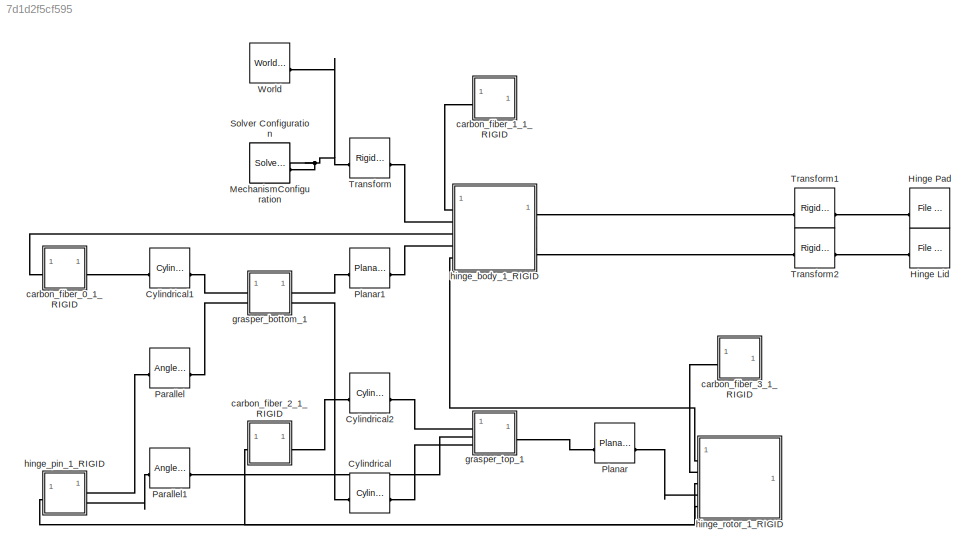
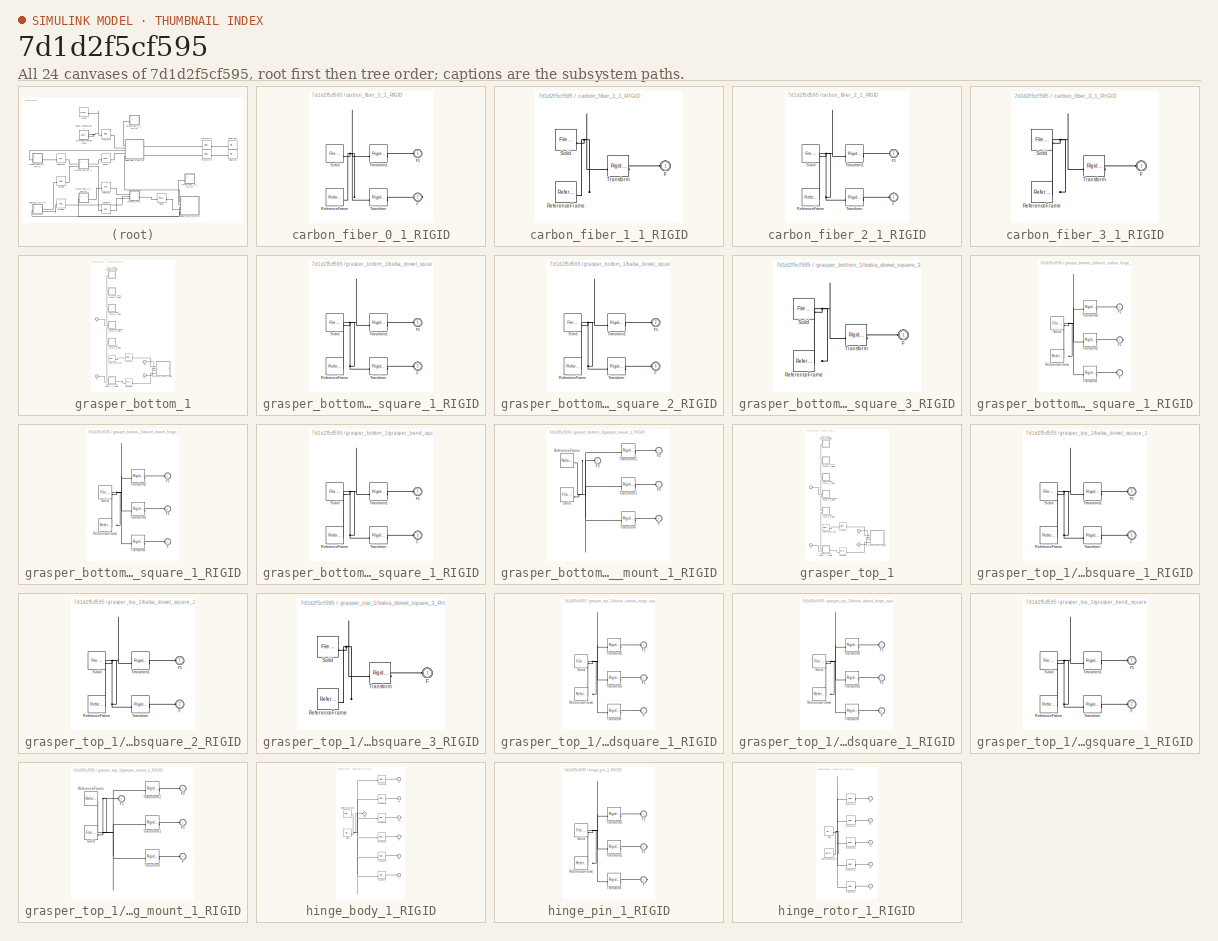
[diagram: thumbnail index - all 24 canvases of the model, root first then tree order]
MODEL slx_7d1d2f5cf595
KIND model
CONFIG AbsTol = auto
CONFIG EnableMultiTasking = off
CONFIG FixedStep = auto
CONFIG MaxStep = auto
CONFIG MinStep = auto
CONFIG RelTol = 1e-3
CONFIG SampleTimeConstraint = Unconstrained
CONFIG SolverName = VariableStepAuto
CONFIG StartTime = 0.0
CONFIG StopTime = 10.0
WORKSPACE source: external: MATLAB File  (data not in archive)
BLOCK [Reference] Cylindrical  REF=sm_lib/Joints/Cylindrical
Joint
  SourceBlock = sm_lib/Joints/Cylindrical\nJoint
  SourceType = Cylindrical\nJoint
BLOCK [Reference] Cylindrical1  REF=sm_lib/Joints/Cylindrical
Joint
  SourceBlock = sm_lib/Joints/Cylindrical\nJoint
  SourceType = Cylindrical\nJoint
BLOCK [Reference] Cylindrical2  REF=sm_lib/Joints/Cylindrical
Joint
  SourceBlock = sm_lib/Joints/Cylindrical\nJoint
  SourceType = Cylindrical\nJoint
BLOCK [Reference] Hinge Lid  REF=sm_lib/Body Elements/File Solid
  NameLocation = top
  SourceBlock = sm_lib/Body Elements/File Solid
  SourceType = File Solid
BLOCK [Reference] Hinge Pad  REF=sm_lib/Body Elements/File Solid
  NameLocation = top
  SourceBlock = sm_lib/Body Elements/File Solid
  SourceType = File Solid
BLOCK [Reference] MechanismConfiguration  REF=sm_lib/Utilities/Mechanism
Configuration
  SourceBlock = sm_lib/Utilities/Mechanism\nConfiguration
  SourceType = Mechanism\nConfiguration
BLOCK [Reference] Parallel  REF=sm_lib/Constraints/Angle
Constraint
  SourceBlock = sm_lib/Constraints/Angle\nConstraint
  SourceType = Angle\nConstraint
BLOCK [Reference] Parallel1  REF=sm_lib/Constraints/Angle
Constraint
  SourceBlock = sm_lib/Constraints/Angle\nConstraint
  SourceType = Angle\nConstraint
BLOCK [Reference] Planar  REF=sm_lib/Joints/Planar Joint
  SourceBlock = sm_lib/Joints/Planar Joint
  SourceType = Planar Joint
BLOCK [Reference] Planar1  REF=sm_lib/Joints/Planar Joint
  SourceBlock = sm_lib/Joints/Planar Joint
  SourceType = Planar Joint
BLOCK [Reference] Solver Configuration  REF=nesl_utility/Solver
Configuration
  SourceBlock = nesl_utility/Solver\nConfiguration
  SourceType = Solver\nConfiguration
BLOCK [Reference] Transform  REF=sm_lib/Frames and
Transforms/Rigid
Transform
  SourceBlock = sm_lib/Frames and\nTransforms/Rigid\nTransform
  SourceType = Rigid\nTransform
BLOCK [Reference] Transform1  REF=sm_lib/Frames and
Transforms/Rigid
Transform
  NameLocation = top
  SourceBlock = sm_lib/Frames and\nTransforms/Rigid\nTransform
  SourceType = Rigid\nTransform
BLOCK [Reference] Transform2  REF=sm_lib/Frames and
Transforms/Rigid
Transform
  NameLocation = top
  SourceBlock = sm_lib/Frames and\nTransforms/Rigid\nTransform
  SourceType = Rigid\nTransform
BLOCK [Reference] World  REF=sm_lib/Frames and
Transforms/World Frame
  SourceBlock = sm_lib/Frames and\nTransforms/World Frame
  SourceType = World Frame
BLOCK [SubSystem] carbon_fiber_0_1_RIGID
BLOCK [PMIOPort] carbon_fiber_0_1_RIGID/F
  Port = 2
  Side = Right
BLOCK [PMIOPort] carbon_fiber_0_1_RIGID/F1
  Side = Left
BLOCK [Reference] carbon_fiber_0_1_RIGID/ReferenceFrame  REF=sm_lib/Frames and
Transforms/Reference
Frame
  SourceBlock = sm_lib/Frames and\nTransforms/Reference\nFrame
  SourceType = Reference\nFrame
BLOCK [Reference] carbon_fiber_0_1_RIGID/Solid  REF=sm_lib/Body Elements/File Solid
  SourceBlock = sm_lib/Body Elements/File Solid
  SourceType = File Solid
BLOCK [Reference] carbon_fiber_0_1_RIGID/Transform  REF=sm_lib/Frames and
Transforms/Rigid
Transform
  SourceBlock = sm_lib/Frames and\nTransforms/Rigid\nTransform
  SourceType = Rigid\nTransform
BLOCK [Reference] carbon_fiber_0_1_RIGID/Transform1  REF=sm_lib/Frames and
Transforms/Rigid
Transform
  SourceBlock = sm_lib/Frames and\nTransforms/Rigid\nTransform
  SourceType = Rigid\nTransform
BLOCK [SubSystem] carbon_fiber_1_1_RIGID
BLOCK [PMIOPort] carbon_fiber_1_1_RIGID/F
  Side = Left
BLOCK [Reference] carbon_fiber_1_1_RIGID/ReferenceFrame  REF=sm_lib/Frames and
Transforms/Reference
Frame
  SourceBlock = sm_lib/Frames and\nTransforms/Reference\nFrame
  SourceType = Reference\nFrame
BLOCK [Reference] carbon_fiber_1_1_RIGID/Solid  REF=sm_lib/Body Elements/File Solid
  SourceBlock = sm_lib/Body Elements/File Solid
  SourceType = File Solid
BLOCK [Reference] carbon_fiber_1_1_RIGID/Transform  REF=sm_lib/Frames and
Transforms/Rigid
Transform
  SourceBlock = sm_lib/Frames and\nTransforms/Rigid\nTransform
  SourceType = Rigid\nTransform
BLOCK [SubSystem] carbon_fiber_2_1_RIGID
BLOCK [PMIOPort] carbon_fiber_2_1_RIGID/F
  Side = Left
BLOCK [PMIOPort] carbon_fiber_2_1_RIGID/F1
  Port = 2
  Side = Right
BLOCK [Reference] carbon_fiber_2_1_RIGID/ReferenceFrame  REF=sm_lib/Frames and
Transforms/Reference
Frame
  SourceBlock = sm_lib/Frames and\nTransforms/Reference\nFrame
  SourceType = Reference\nFrame
BLOCK [Reference] carbon_fiber_2_1_RIGID/Solid  REF=sm_lib/Body Elements/File Solid
  SourceBlock = sm_lib/Body Elements/File Solid
  SourceType = File Solid
BLOCK [Reference] carbon_fiber_2_1_RIGID/Transform  REF=sm_lib/Frames and
Transforms/Rigid
Transform
  SourceBlock = sm_lib/Frames and\nTransforms/Rigid\nTransform
  SourceType = Rigid\nTransform
BLOCK [Reference] carbon_fiber_2_1_RIGID/Transform1  REF=sm_lib/Frames and
Transforms/Rigid
Transform
  SourceBlock = sm_lib/Frames and\nTransforms/Rigid\nTransform
  SourceType = Rigid\nTransform
BLOCK [SubSystem] carbon_fiber_3_1_RIGID
BLOCK [PMIOPort] carbon_fiber_3_1_RIGID/F
  Side = Left
BLOCK [Reference] carbon_fiber_3_1_RIGID/ReferenceFrame  REF=sm_lib/Frames and
Transforms/Reference
Frame
  SourceBlock = sm_lib/Frames and\nTransforms/Reference\nFrame
  SourceType = Reference\nFrame
BLOCK [Reference] carbon_fiber_3_1_RIGID/Solid  REF=sm_lib/Body Elements/File Solid
  SourceBlock = sm_lib/Body Elements/File Solid
  SourceType = File Solid
BLOCK [Reference] carbon_fiber_3_1_RIGID/Transform  REF=sm_lib/Frames and
Transforms/Rigid
Transform
  SourceBlock = sm_lib/Frames and\nTransforms/Rigid\nTransform
  SourceType = Rigid\nTransform
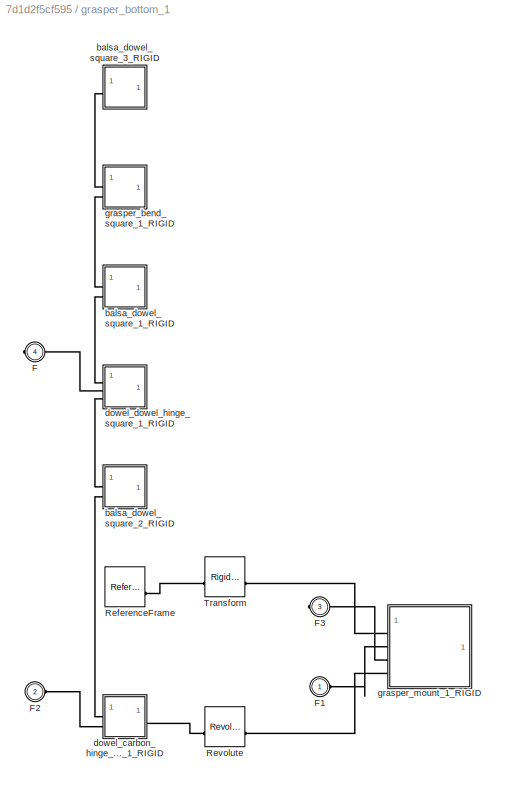
BLOCK [SubSystem] grasper_bottom_1
BLOCK [PMIOPort] grasper_bottom_1/F
  Port = 4
  Side = Right
BLOCK [PMIOPort] grasper_bottom_1/F1
  Side = Left
BLOCK [PMIOPort] grasper_bottom_1/F2
  Port = 2
  Side = Left
BLOCK [PMIOPort] grasper_bottom_1/F3
  Port = 3
  Side = Right
BLOCK [Reference] grasper_bottom_1/ReferenceFrame  REF=sm_lib/Frames and
Transforms/Reference
Frame
  SourceBlock = sm_lib/Frames and\nTransforms/Reference\nFrame
  SourceType = Reference\nFrame
BLOCK [Reference] grasper_bottom_1/Revolute  REF=sm_lib/Joints/Revolute Joint
  SourceBlock = sm_lib/Joints/Revolute Joint
  SourceType = Revolute Joint
BLOCK [Reference] grasper_bottom_1/Transform  REF=sm_lib/Frames and
Transforms/Rigid
Transform
  SourceBlock = sm_lib/Frames and\nTransforms/Rigid\nTransform
  SourceType = Rigid\nTransform
BLOCK [SubSystem] grasper_bottom_1/balsa_dowel_square_1_RIGID
BLOCK [PMIOPort] grasper_bottom_1/balsa_dowel_square_1_RIGID/F
  Port = 2
  Side = Left
BLOCK [PMIOPort] grasper_bottom_1/balsa_dowel_square_1_RIGID/F1
  Side = Left
BLOCK [Reference] grasper_bottom_1/balsa_dowel_square_1_RIGID/ReferenceFrame  REF=sm_lib/Frames and
Transforms/Reference
Frame
  SourceBlock = sm_lib/Frames and\nTransforms/Reference\nFrame
  SourceType = Reference\nFrame
BLOCK [Reference] grasper_bottom_1/balsa_dowel_square_1_RIGID/Solid  REF=sm_lib/Body Elements/File Solid
  SourceBlock = sm_lib/Body Elements/File Solid
  SourceType = File Solid
BLOCK [Reference] grasper_bottom_1/balsa_dowel_square_1_RIGID/Transform  REF=sm_lib/Frames and
Transforms/Rigid
Transform
  SourceBlock = sm_lib/Frames and\nTransforms/Rigid\nTransform
  SourceType = Rigid\nTransform
BLOCK [Reference] grasper_bottom_1/balsa_dowel_square_1_RIGID/Transform1  REF=sm_lib/Frames and
Transforms/Rigid
Transform
  SourceBlock = sm_lib/Frames and\nTransforms/Rigid\nTransform
  SourceType = Rigid\nTransform
BLOCK [SubSystem] grasper_bottom_1/balsa_dowel_square_2_RIGID
BLOCK [PMIOPort] grasper_bottom_1/balsa_dowel_square_2_RIGID/F
  Side = Left
BLOCK [PMIOPort] grasper_bottom_1/balsa_dowel_square_2_RIGID/F1
  Port = 2
  Side = Left
BLOCK [Reference] grasper_bottom_1/balsa_dowel_square_2_RIGID/ReferenceFrame  REF=sm_lib/Frames and
Transforms/Reference
Frame
  SourceBlock = sm_lib/Frames and\nTransforms/Reference\nFrame
  SourceType = Reference\nFrame
BLOCK [Reference] grasper_bottom_1/balsa_dowel_square_2_RIGID/Solid  REF=sm_lib/Body Elements/File Solid
  SourceBlock = sm_lib/Body Elements/File Solid
  SourceType = File Solid
BLOCK [Reference] grasper_bottom_1/balsa_dowel_square_2_RIGID/Transform  REF=sm_lib/Frames and
Transforms/Rigid
Transform
  SourceBlock = sm_lib/Frames and\nTransforms/Rigid\nTransform
  SourceType = Rigid\nTransform
BLOCK [Reference] grasper_bottom_1/balsa_dowel_square_2_RIGID/Transform1  REF=sm_lib/Frames and
Transforms/Rigid
Transform
  SourceBlock = sm_lib/Frames and\nTransforms/Rigid\nTransform
  SourceType = Rigid\nTransform
BLOCK [SubSystem] grasper_bottom_1/balsa_dowel_square_3_RIGID
BLOCK [PMIOPort] grasper_bottom_1/balsa_dowel_square_3_RIGID/F
  Side = Left
BLOCK [Reference] grasper_bottom_1/balsa_dowel_square_3_RIGID/ReferenceFrame  REF=sm_lib/Frames and
Transforms/Reference
Frame
  SourceBlock = sm_lib/Frames and\nTransforms/Reference\nFrame
  SourceType = Reference\nFrame
BLOCK [Reference] grasper_bottom_1/balsa_dowel_square_3_RIGID/Solid  REF=sm_lib/Body Elements/File Solid
  SourceBlock = sm_lib/Body Elements/File Solid
  SourceType = File Solid
BLOCK [Reference] grasper_bottom_1/balsa_dowel_square_3_RIGID/Transform  REF=sm_lib/Frames and
Transforms/Rigid
Transform
  SourceBlock = sm_lib/Frames and\nTransforms/Rigid\nTransform
  SourceType = Rigid\nTransform
BLOCK [SubSystem] grasper_bottom_1/dowel_carbon_hinge_square_1_RIGID
BLOCK [PMIOPort] grasper_bottom_1/dowel_carbon_hinge_square_1_RIGID/F
  Side = Left
BLOCK [PMIOPort] grasper_bottom_1/dowel_carbon_hinge_square_1_RIGID/F1
  Port = 3
  Side = Right
BLOCK [PMIOPort] grasper_bottom_1/dowel_carbon_hinge_square_1_RIGID/F2
  Port = 2
  Side = Left
BLOCK [Reference] grasper_bottom_1/dowel_carbon_hinge_square_1_RIGID/ReferenceFrame  REF=sm_lib/Frames and
Transforms/Reference
Frame
  SourceBlock = sm_lib/Frames and\nTransforms/Reference\nFrame
  SourceType = Reference\nFrame
BLOCK [Reference] grasper_bottom_1/dowel_carbon_hinge_square_1_RIGID/Solid  REF=sm_lib/Body Elements/File Solid
  SourceBlock = sm_lib/Body Elements/File Solid
  SourceType = File Solid
BLOCK [Reference] grasper_bottom_1/dowel_carbon_hinge_square_1_RIGID/Transform  REF=sm_lib/Frames and
Transforms/Rigid
Transform
  SourceBlock = sm_lib/Frames and\nTransforms/Rigid\nTransform
  SourceType = Rigid\nTransform
BLOCK [Reference] grasper_bottom_1/dowel_carbon_hinge_square_1_RIGID/Transform1  REF=sm_lib/Frames and
Transforms/Rigid
Transform
  SourceBlock = sm_lib/Frames and\nTransforms/Rigid\nTransform
  SourceType = Rigid\nTransform
BLOCK [Reference] grasper_bottom_1/dowel_carbon_hinge_square_1_RIGID/Transform2  REF=sm_lib/Frames and
Transforms/Rigid
Transform
  SourceBlock = sm_lib/Frames and\nTransforms/Rigid\nTransform
  SourceType = Rigid\nTransform
BLOCK [SubSystem] grasper_bottom_1/dowel_dowel_hinge_square_1_RIGID
BLOCK [PMIOPort] grasper_bottom_1/dowel_dowel_hinge_square_1_RIGID/F
  Side = Left
BLOCK [PMIOPort] grasper_bottom_1/dowel_dowel_hinge_square_1_RIGID/F1
  Port = 3
  Side = Left
BLOCK [PMIOPort] grasper_bottom_1/dowel_dowel_hinge_square_1_RIGID/F2
  Port = 2
  Side = Left
BLOCK [Reference] grasper_bottom_1/dowel_dowel_hinge_square_1_RIGID/ReferenceFrame  REF=sm_lib/Frames and
Transforms/Reference
Frame
  SourceBlock = sm_lib/Frames and\nTransforms/Reference\nFrame
  SourceType = Reference\nFrame
BLOCK [Reference] grasper_bottom_1/dowel_dowel_hinge_square_1_RIGID/Solid  REF=sm_lib/Body Elements/File Solid
  SourceBlock = sm_lib/Body Elements/File Solid
  SourceType = File Solid
BLOCK [Reference] grasper_bottom_1/dowel_dowel_hinge_square_1_RIGID/Transform  REF=sm_lib/Frames and
Transforms/Rigid
Transform
  SourceBlock = sm_lib/Frames and\nTransforms/Rigid\nTransform
  SourceType = Rigid\nTransform
BLOCK [Reference] grasper_bottom_1/dowel_dowel_hinge_square_1_RIGID/Transform1  REF=sm_lib/Frames and
Transforms/Rigid
Transform
  SourceBlock = sm_lib/Frames and\nTransforms/Rigid\nTransform
  SourceType = Rigid\nTransform
BLOCK [Reference] grasper_bottom_1/dowel_dowel_hinge_square_1_RIGID/Transform2  REF=sm_lib/Frames and
Transforms/Rigid
Transform
  SourceBlock = sm_lib/Frames and\nTransforms/Rigid\nTransform
  SourceType = Rigid\nTransform
BLOCK [SubSystem] grasper_bottom_1/grasper_bend_square_1_RIGID
BLOCK [PMIOPort] grasper_bottom_1/grasper_bend_square_1_RIGID/F
  Port = 2
  Side = Left
BLOCK [PMIOPort] grasper_bottom_1/grasper_bend_square_1_RIGID/F1
  Side = Left
BLOCK [Reference] grasper_bottom_1/grasper_bend_square_1_RIGID/ReferenceFrame  REF=sm_lib/Frames and
Transforms/Reference
Frame
  SourceBlock = sm_lib/Frames and\nTransforms/Reference\nFrame
  SourceType = Reference\nFrame
BLOCK [Reference] grasper_bottom_1/grasper_bend_square_1_RIGID/Solid  REF=sm_lib/Body Elements/File Solid
  SourceBlock = sm_lib/Body Elements/File Solid
  SourceType = File Solid
BLOCK [Reference] grasper_bottom_1/grasper_bend_square_1_RIGID/Transform  REF=sm_lib/Frames and
Transforms/Rigid
Transform
  SourceBlock = sm_lib/Frames and\nTransforms/Rigid\nTransform
  SourceType = Rigid\nTransform
BLOCK [Reference] grasper_bottom_1/grasper_bend_square_1_RIGID/Transform1  REF=sm_lib/Frames and
Transforms/Rigid
Transform
  SourceBlock = sm_lib/Frames and\nTransforms/Rigid\nTransform
  SourceType = Rigid\nTransform
BLOCK [SubSystem] grasper_bottom_1/grasper_mount_1_RIGID
BLOCK [PMIOPort] grasper_bottom_1/grasper_mount_1_RIGID/F
  Port = 4
  Side = Left
BLOCK [PMIOPort] grasper_bottom_1/grasper_mount_1_RIGID/F1
  Port = 2
  Side = Left
BLOCK [PMIOPort] grasper_bottom_1/grasper_mount_1_RIGID/F2
  Port = 3
  Side = Left
BLOCK [PMIOPort] grasper_bottom_1/grasper_mount_1_RIGID/F3
  Side = Left
BLOCK [Reference] grasper_bottom_1/grasper_mount_1_RIGID/ReferenceFrame  REF=sm_lib/Frames and
Transforms/Reference
Frame
  SourceBlock = sm_lib/Frames and\nTransforms/Reference\nFrame
  SourceType = Reference\nFrame
BLOCK [Reference] grasper_bottom_1/grasper_mount_1_RIGID/Solid  REF=sm_lib/Body Elements/File Solid
  SourceBlock = sm_lib/Body Elements/File Solid
  SourceType = File Solid
BLOCK [Reference] grasper_bottom_1/grasper_mount_1_RIGID/Transform  REF=sm_lib/Frames and
Transforms/Rigid
Transform
  SourceBlock = sm_lib/Frames and\nTransforms/Rigid\nTransform
  SourceType = Rigid\nTransform
BLOCK [Reference] grasper_bottom_1/grasper_mount_1_RIGID/Transform1  REF=sm_lib/Frames and
Transforms/Rigid
Transform
  SourceBlock = sm_lib/Frames and\nTransforms/Rigid\nTransform
  SourceType = Rigid\nTransform
BLOCK [Reference] grasper_bottom_1/grasper_mount_1_RIGID/Transform2  REF=sm_lib/Frames and
Transforms/Rigid
Transform
  SourceBlock = sm_lib/Frames and\nTransforms/Rigid\nTransform
  SourceType = Rigid\nTransform
BLOCK [SubSystem] grasper_top_1
BLOCK [PMIOPort] grasper_top_1/F
  Port = 3
  Side = Left
BLOCK [PMIOPort] grasper_top_1/F1
  Port = 2
  Side = Left
BLOCK [PMIOPort] grasper_top_1/F2
  Port = 4
  Side = Right
BLOCK [PMIOPort] grasper_top_1/F3
  Side = Left
BLOCK [Reference] grasper_top_1/ReferenceFrame  REF=sm_lib/Frames and
Transforms/Reference
Frame
  SourceBlock = sm_lib/Frames and\nTransforms/Reference\nFrame
  SourceType = Reference\nFrame
BLOCK [Reference] grasper_top_1/Revolute  REF=sm_lib/Joints/Revolute Joint
  SourceBlock = sm_lib/Joints/Revolute Joint
  SourceType = Revolute Joint
BLOCK [Reference] grasper_top_1/Transform  REF=sm_lib/Frames and
Transforms/Rigid
Transform
  SourceBlock = sm_lib/Frames and\nTransforms/Rigid\nTransform
  SourceType = Rigid\nTransform
BLOCK [SubSystem] grasper_top_1/balsa_dowel_square_1_RIGID
BLOCK [PMIOPort] grasper_top_1/balsa_dowel_square_1_RIGID/F
  Side = Left
BLOCK [PMIOPort] grasper_top_1/balsa_dowel_square_1_RIGID/F1
  Port = 2
  Side = Left
BLOCK [Reference] grasper_top_1/balsa_dowel_square_1_RIGID/ReferenceFrame  REF=sm_lib/Frames and
Transforms/Reference
Frame
  SourceBlock = sm_lib/Frames and\nTransforms/Reference\nFrame
  SourceType = Reference\nFrame
BLOCK [Reference] grasper_top_1/balsa_dowel_square_1_RIGID/Solid  REF=sm_lib/Body Elements/File Solid
  SourceBlock = sm_lib/Body Elements/File Solid
  SourceType = File Solid
BLOCK [Reference] grasper_top_1/balsa_dowel_square_1_RIGID/Transform  REF=sm_lib/Frames and
Transforms/Rigid
Transform
  SourceBlock = sm_lib/Frames and\nTransforms/Rigid\nTransform
  SourceType = Rigid\nTransform
BLOCK [Reference] grasper_top_1/balsa_dowel_square_1_RIGID/Transform1  REF=sm_lib/Frames and
Transforms/Rigid
Transform
  SourceBlock = sm_lib/Frames and\nTransforms/Rigid\nTransform
  SourceType = Rigid\nTransform
BLOCK [SubSystem] grasper_top_1/balsa_dowel_square_2_RIGID
BLOCK [PMIOPort] grasper_top_1/balsa_dowel_square_2_RIGID/F
  Port = 2
  Side = Left
BLOCK [PMIOPort] grasper_top_1/balsa_dowel_square_2_RIGID/F1
  Side = Left
BLOCK [Reference] grasper_top_1/balsa_dowel_square_2_RIGID/ReferenceFrame  REF=sm_lib/Frames and
Transforms/Reference
Frame
  SourceBlock = sm_lib/Frames and\nTransforms/Reference\nFrame
  SourceType = Reference\nFrame
BLOCK [Reference] grasper_top_1/balsa_dowel_square_2_RIGID/Solid  REF=sm_lib/Body Elements/File Solid
  SourceBlock = sm_lib/Body Elements/File Solid
  SourceType = File Solid
BLOCK [Reference] grasper_top_1/balsa_dowel_square_2_RIGID/Transform  REF=sm_lib/Frames and
Transforms/Rigid
Transform
  SourceBlock = sm_lib/Frames and\nTransforms/Rigid\nTransform
  SourceType = Rigid\nTransform
BLOCK [Reference] grasper_top_1/balsa_dowel_square_2_RIGID/Transform1  REF=sm_lib/Frames and
Transforms/Rigid
Transform
  SourceBlock = sm_lib/Frames and\nTransforms/Rigid\nTransform
  SourceType = Rigid\nTransform
BLOCK [SubSystem] grasper_top_1/balsa_dowel_square_3_RIGID
BLOCK [PMIOPort] grasper_top_1/balsa_dowel_square_3_RIGID/F
  Side = Left
BLOCK [Reference] grasper_top_1/balsa_dowel_square_3_RIGID/ReferenceFrame  REF=sm_lib/Frames and
Transforms/Reference
Frame
  SourceBlock = sm_lib/Frames and\nTransforms/Reference\nFrame
  SourceType = Reference\nFrame
BLOCK [Reference] grasper_top_1/balsa_dowel_square_3_RIGID/Solid  REF=sm_lib/Body Elements/File Solid
  SourceBlock = sm_lib/Body Elements/File Solid
  SourceType = File Solid
BLOCK [Reference] grasper_top_1/balsa_dowel_square_3_RIGID/Transform  REF=sm_lib/Frames and
Transforms/Rigid
Transform
  SourceBlock = sm_lib/Frames and\nTransforms/Rigid\nTransform
  SourceType = Rigid\nTransform
BLOCK [SubSystem] grasper_top_1/dowel_carbon_hinge_square_1_RIGID
BLOCK [PMIOPort] grasper_top_1/dowel_carbon_hinge_square_1_RIGID/F
  Side = Left
BLOCK [PMIOPort] grasper_top_1/dowel_carbon_hinge_square_1_RIGID/F1
  Port = 3
  Side = Right
BLOCK [PMIOPort] grasper_top_1/dowel_carbon_hinge_square_1_RIGID/F2
  Port = 2
  Side = Left
BLOCK [Reference] grasper_top_1/dowel_carbon_hinge_square_1_RIGID/ReferenceFrame  REF=sm_lib/Frames and
Transforms/Reference
Frame
  SourceBlock = sm_lib/Frames and\nTransforms/Reference\nFrame
  SourceType = Reference\nFrame
BLOCK [Reference] grasper_top_1/dowel_carbon_hinge_square_1_RIGID/Solid  REF=sm_lib/Body Elements/File Solid
  SourceBlock = sm_lib/Body Elements/File Solid
  SourceType = File Solid
BLOCK [Reference] grasper_top_1/dowel_carbon_hinge_square_1_RIGID/Transform  REF=sm_lib/Frames and
Transforms/Rigid
Transform
  SourceBlock = sm_lib/Frames and\nTransforms/Rigid\nTransform
  SourceType = Rigid\nTransform
BLOCK [Reference] grasper_top_1/dowel_carbon_hinge_square_1_RIGID/Transform1  REF=sm_lib/Frames and
Transforms/Rigid
Transform
  SourceBlock = sm_lib/Frames and\nTransforms/Rigid\nTransform
  SourceType = Rigid\nTransform
BLOCK [Reference] grasper_top_1/dowel_carbon_hinge_square_1_RIGID/Transform2  REF=sm_lib/Frames and
Transforms/Rigid
Transform
  SourceBlock = sm_lib/Frames and\nTransforms/Rigid\nTransform
  SourceType = Rigid\nTransform
BLOCK [SubSystem] grasper_top_1/dowel_dowel_hinge_square_1_RIGID
BLOCK [PMIOPort] grasper_top_1/dowel_dowel_hinge_square_1_RIGID/F
  Port = 3
  Side = Left
BLOCK [PMIOPort] grasper_top_1/dowel_dowel_hinge_square_1_RIGID/F1
  Side = Left
BLOCK [PMIOPort] grasper_top_1/dowel_dowel_hinge_square_1_RIGID/F2
  Port = 2
  Side = Left
BLOCK [Reference] grasper_top_1/dowel_dowel_hinge_square_1_RIGID/ReferenceFrame  REF=sm_lib/Frames and
Transforms/Reference
Frame
  SourceBlock = sm_lib/Frames and\nTransforms/Reference\nFrame
  SourceType = Reference\nFrame
BLOCK [Reference] grasper_top_1/dowel_dowel_hinge_square_1_RIGID/Solid  REF=sm_lib/Body Elements/File Solid
  SourceBlock = sm_lib/Body Elements/File Solid
  SourceType = File Solid
BLOCK [Reference] grasper_top_1/dowel_dowel_hinge_square_1_RIGID/Transform  REF=sm_lib/Frames and
Transforms/Rigid
Transform
  SourceBlock = sm_lib/Frames and\nTransforms/Rigid\nTransform
  SourceType = Rigid\nTransform
BLOCK [Reference] grasper_top_1/dowel_dowel_hinge_square_1_RIGID/Transform1  REF=sm_lib/Frames and
Transforms/Rigid
Transform
  SourceBlock = sm_lib/Frames and\nTransforms/Rigid\nTransform
  SourceType = Rigid\nTransform
BLOCK [Reference] grasper_top_1/dowel_dowel_hinge_square_1_RIGID/Transform2  REF=sm_lib/Frames and
Transforms/Rigid
Transform
  SourceBlock = sm_lib/Frames and\nTransforms/Rigid\nTransform
  SourceType = Rigid\nTransform
BLOCK [SubSystem] grasper_top_1/grasper_bend_square_1_RIGID
BLOCK [PMIOPort] grasper_top_1/grasper_bend_square_1_RIGID/F
  Port = 2
  Side = Left
BLOCK [PMIOPort] grasper_top_1/grasper_bend_square_1_RIGID/F1
  Side = Left
BLOCK [Reference] grasper_top_1/grasper_bend_square_1_RIGID/ReferenceFrame  REF=sm_lib/Frames and
Transforms/Reference
Frame
  SourceBlock = sm_lib/Frames and\nTransforms/Reference\nFrame
  SourceType = Reference\nFrame
BLOCK [Reference] grasper_top_1/grasper_bend_square_1_RIGID/Solid  REF=sm_lib/Body Elements/File Solid
  SourceBlock = sm_lib/Body Elements/File Solid
  SourceType = File Solid
BLOCK [Reference] grasper_top_1/grasper_bend_square_1_RIGID/Transform  REF=sm_lib/Frames and
Transforms/Rigid
Transform
  SourceBlock = sm_lib/Frames and\nTransforms/Rigid\nTransform
  SourceType = Rigid\nTransform
BLOCK [Reference] grasper_top_1/grasper_bend_square_1_RIGID/Transform1  REF=sm_lib/Frames and
Transforms/Rigid
Transform
  SourceBlock = sm_lib/Frames and\nTransforms/Rigid\nTransform
  SourceType = Rigid\nTransform
BLOCK [SubSystem] grasper_top_1/grasper_mount_1_RIGID
BLOCK [PMIOPort] grasper_top_1/grasper_mount_1_RIGID/F
  Port = 4
  Side = Left
BLOCK [PMIOPort] grasper_top_1/grasper_mount_1_RIGID/F1
  Port = 2
  Side = Left
BLOCK [PMIOPort] grasper_top_1/grasper_mount_1_RIGID/F2
  Port = 3
  Side = Left
BLOCK [PMIOPort] grasper_top_1/grasper_mount_1_RIGID/F3
  Side = Left
BLOCK [Reference] grasper_top_1/grasper_mount_1_RIGID/ReferenceFrame  REF=sm_lib/Frames and
Transforms/Reference
Frame
  SourceBlock = sm_lib/Frames and\nTransforms/Reference\nFrame
  SourceType = Reference\nFrame
BLOCK [Reference] grasper_top_1/grasper_mount_1_RIGID/Solid  REF=sm_lib/Body Elements/File Solid
  SourceBlock = sm_lib/Body Elements/File Solid
  SourceType = File Solid
BLOCK [Reference] grasper_top_1/grasper_mount_1_RIGID/Transform  REF=sm_lib/Frames and
Transforms/Rigid
Transform
  SourceBlock = sm_lib/Frames and\nTransforms/Rigid\nTransform
  SourceType = Rigid\nTransform
BLOCK [Reference] grasper_top_1/grasper_mount_1_RIGID/Transform1  REF=sm_lib/Frames and
Transforms/Rigid
Transform
  SourceBlock = sm_lib/Frames and\nTransforms/Rigid\nTransform
  SourceType = Rigid\nTransform
BLOCK [Reference] grasper_top_1/grasper_mount_1_RIGID/Transform2  REF=sm_lib/Frames and
Transforms/Rigid
Transform
  SourceBlock = sm_lib/Frames and\nTransforms/Rigid\nTransform
  SourceType = Rigid\nTransform
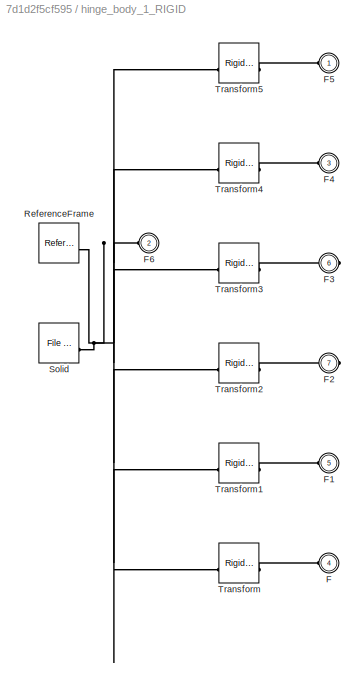
BLOCK [SubSystem] hinge_body_1_RIGID
BLOCK [PMIOPort] hinge_body_1_RIGID/F
  Port = 4
  Side = Left
BLOCK [PMIOPort] hinge_body_1_RIGID/F1
  Port = 5
  Side = Left
BLOCK [PMIOPort] hinge_body_1_RIGID/F2
  Port = 7
  Side = Right
BLOCK [PMIOPort] hinge_body_1_RIGID/F3
  Port = 6
  Side = Right
BLOCK [PMIOPort] hinge_body_1_RIGID/F4
  Port = 3
  Side = Left
BLOCK [PMIOPort] hinge_body_1_RIGID/F5
  Side = Left
BLOCK [PMIOPort] hinge_body_1_RIGID/F6
  Port = 2
  Side = Left
BLOCK [Reference] hinge_body_1_RIGID/ReferenceFrame  REF=sm_lib/Frames and
Transforms/Reference
Frame
  SourceBlock = sm_lib/Frames and\nTransforms/Reference\nFrame
  SourceType = Reference\nFrame
BLOCK [Reference] hinge_body_1_RIGID/Solid  REF=sm_lib/Body Elements/File Solid
  SourceBlock = sm_lib/Body Elements/File Solid
  SourceType = File Solid
BLOCK [Reference] hinge_body_1_RIGID/Transform  REF=sm_lib/Frames and
Transforms/Rigid
Transform
  SourceBlock = sm_lib/Frames and\nTransforms/Rigid\nTransform
  SourceType = Rigid\nTransform
BLOCK [Reference] hinge_body_1_RIGID/Transform1  REF=sm_lib/Frames and
Transforms/Rigid
Transform
  SourceBlock = sm_lib/Frames and\nTransforms/Rigid\nTransform
  SourceType = Rigid\nTransform
BLOCK [Reference] hinge_body_1_RIGID/Transform2  REF=sm_lib/Frames and
Transforms/Rigid
Transform
  SourceBlock = sm_lib/Frames and\nTransforms/Rigid\nTransform
  SourceType = Rigid\nTransform
BLOCK [Reference] hinge_body_1_RIGID/Transform3  REF=sm_lib/Frames and
Transforms/Rigid
Transform
  SourceBlock = sm_lib/Frames and\nTransforms/Rigid\nTransform
  SourceType = Rigid\nTransform
BLOCK [Reference] hinge_body_1_RIGID/Transform4  REF=sm_lib/Frames and
Transforms/Rigid
Transform
  SourceBlock = sm_lib/Frames and\nTransforms/Rigid\nTransform
  SourceType = Rigid\nTransform
BLOCK [Reference] hinge_body_1_RIGID/Transform5  REF=sm_lib/Frames and
Transforms/Rigid
Transform
  SourceBlock = sm_lib/Frames and\nTransforms/Rigid\nTransform
  SourceType = Rigid\nTransform
BLOCK [SubSystem] hinge_pin_1_RIGID
BLOCK [PMIOPort] hinge_pin_1_RIGID/F
  Port = 2
  Side = Right
BLOCK [PMIOPort] hinge_pin_1_RIGID/F1
  Port = 3
  Side = Right
BLOCK [PMIOPort] hinge_pin_1_RIGID/F2
  Side = Left
BLOCK [Reference] hinge_pin_1_RIGID/ReferenceFrame  REF=sm_lib/Frames and
Transforms/Reference
Frame
  SourceBlock = sm_lib/Frames and\nTransforms/Reference\nFrame
  SourceType = Reference\nFrame
BLOCK [Reference] hinge_pin_1_RIGID/Solid  REF=sm_lib/Body Elements/File Solid
  SourceBlock = sm_lib/Body Elements/File Solid
  SourceType = File Solid
BLOCK [Reference] hinge_pin_1_RIGID/Transform  REF=sm_lib/Frames and
Transforms/Rigid
Transform
  SourceBlock = sm_lib/Frames and\nTransforms/Rigid\nTransform
  SourceType = Rigid\nTransform
BLOCK [Reference] hinge_pin_1_RIGID/Transform1  REF=sm_lib/Frames and
Transforms/Rigid
Transform
  SourceBlock = sm_lib/Frames and\nTransforms/Rigid\nTransform
  SourceType = Rigid\nTransform
BLOCK [Reference] hinge_pin_1_RIGID/Transform2  REF=sm_lib/Frames and
Transforms/Rigid
Transform
  SourceBlock = sm_lib/Frames and\nTransforms/Rigid\nTransform
  SourceType = Rigid\nTransform
BLOCK [SubSystem] hinge_rotor_1_RIGID
BLOCK [PMIOPort] hinge_rotor_1_RIGID/F
  Port = 5
  Side = Left
BLOCK [PMIOPort] hinge_rotor_1_RIGID/F1
  Port = 3
  Side = Left
BLOCK [PMIOPort] hinge_rotor_1_RIGID/F2
  Port = 2
  Side = Left
BLOCK [PMIOPort] hinge_rotor_1_RIGID/F3
  Port = 4
  Side = Left
BLOCK [PMIOPort] hinge_rotor_1_RIGID/F4
  Side = Left
BLOCK [Reference] hinge_rotor_1_RIGID/ReferenceFrame  REF=sm_lib/Frames and
Transforms/Reference
Frame
  SourceBlock = sm_lib/Frames and\nTransforms/Reference\nFrame
  SourceType = Reference\nFrame
BLOCK [Reference] hinge_rotor_1_RIGID/Solid  REF=sm_lib/Body Elements/File Solid
  SourceBlock = sm_lib/Body Elements/File Solid
  SourceType = File Solid
BLOCK [Reference] hinge_rotor_1_RIGID/Transform  REF=sm_lib/Frames and
Transforms/Rigid
Transform
  SourceBlock = sm_lib/Frames and\nTransforms/Rigid\nTransform
  SourceType = Rigid\nTransform
BLOCK [Reference] hinge_rotor_1_RIGID/Transform1  REF=sm_lib/Frames and
Transforms/Rigid
Transform
  SourceBlock = sm_lib/Frames and\nTransforms/Rigid\nTransform
  SourceType = Rigid\nTransform
BLOCK [Reference] hinge_rotor_1_RIGID/Transform2  REF=sm_lib/Frames and
Transforms/Rigid
Transform
  SourceBlock = sm_lib/Frames and\nTransforms/Rigid\nTransform
  SourceType = Rigid\nTransform
BLOCK [Reference] hinge_rotor_1_RIGID/Transform3  REF=sm_lib/Frames and
Transforms/Rigid
Transform
  SourceBlock = sm_lib/Frames and\nTransforms/Rigid\nTransform
  SourceType = Rigid\nTransform
BLOCK [Reference] hinge_rotor_1_RIGID/Transform4  REF=sm_lib/Frames and
Transforms/Rigid
Transform
  SourceBlock = sm_lib/Frames and\nTransforms/Rigid\nTransform
  SourceType = Rigid\nTransform
PLINE Cylindrical1:LConn1 -- carbon_fiber_0_1_RIGID:RConn1
PLINE Cylindrical1:RConn1 -- grasper_bottom_1:LConn1
PLINE Cylindrical2:LConn1 -- carbon_fiber_2_1_RIGID:RConn1
PLINE Cylindrical2:RConn1 -- grasper_top_1:LConn1
PLINE Cylindrical:LConn1 -- grasper_bottom_1:RConn2
PLINE Cylindrical:RConn1 -- grasper_top_1:LConn3
PLINE Hinge Lid:RConn1 -- Transform2:LConn1
PLINE Hinge Pad:RConn1 -- Transform1:LConn1
PNET net1: MechanismConfiguration:RConn1 -- Solver Configuration:RConn1 -- Transform:LConn1 -- World:RConn1
PLINE Parallel1:LConn1 -- hinge_pin_1_RIGID:RConn2
PLINE Parallel1:RConn1 -- grasper_top_1:LConn2
PLINE Parallel:LConn1 -- hinge_pin_1_RIGID:RConn1
PLINE Parallel:RConn1 -- grasper_bottom_1:LConn2
PLINE Planar1:LConn1 -- grasper_bottom_1:RConn1
PLINE Planar1:RConn1 -- hinge_body_1_RIGID:LConn4
PLINE Planar:LConn1 -- grasper_top_1:RConn1
PLINE Planar:RConn1 -- hinge_rotor_1_RIGID:LConn4
PLINE Transform1:RConn1 -- hinge_body_1_RIGID:RConn1
PLINE Transform2:RConn1 -- hinge_body_1_RIGID:RConn2
PLINE Transform:RConn1 -- hinge_body_1_RIGID:LConn2
PLINE carbon_fiber_0_1_RIGID/F1:RConn1 -- carbon_fiber_0_1_RIGID/Transform1:RConn1
PLINE carbon_fiber_0_1_RIGID/F:RConn1 -- carbon_fiber_0_1_RIGID/Transform:RConn1
PNET net2: carbon_fiber_0_1_RIGID/ReferenceFrame:RConn1 -- carbon_fiber_0_1_RIGID/Solid:RConn1 -- carbon_fiber_0_1_RIGID/Transform1:LConn1 -- carbon_fiber_0_1_RIGID/Transform:LConn1
PLINE carbon_fiber_0_1_RIGID:LConn1 -- hinge_body_1_RIGID:LConn3
PLINE carbon_fiber_1_1_RIGID/F:RConn1 -- carbon_fiber_1_1_RIGID/Transform:RConn1
PNET net3: carbon_fiber_1_1_RIGID/ReferenceFrame:RConn1 -- carbon_fiber_1_1_RIGID/Solid:RConn1 -- carbon_fiber_1_1_RIGID/Transform:LConn1
PLINE carbon_fiber_1_1_RIGID:LConn1 -- hinge_body_1_RIGID:LConn1
PLINE carbon_fiber_2_1_RIGID/F1:RConn1 -- carbon_fiber_2_1_RIGID/Transform1:RConn1
PLINE carbon_fiber_2_1_RIGID/F:RConn1 -- carbon_fiber_2_1_RIGID/Transform:RConn1
PNET net4: carbon_fiber_2_1_RIGID/ReferenceFrame:RConn1 -- carbon_fiber_2_1_RIGID/Solid:RConn1 -- carbon_fiber_2_1_RIGID/Transform1:LConn1 -- carbon_fiber_2_1_RIGID/Transform:LConn1
PLINE carbon_fiber_2_1_RIGID:LConn1 -- hinge_rotor_1_RIGID:LConn3
PLINE carbon_fiber_3_1_RIGID/F:RConn1 -- carbon_fiber_3_1_RIGID/Transform:RConn1
PNET net5: carbon_fiber_3_1_RIGID/ReferenceFrame:RConn1 -- carbon_fiber_3_1_RIGID/Solid:RConn1 -- carbon_fiber_3_1_RIGID/Transform:LConn1
PLINE carbon_fiber_3_1_RIGID:LConn1 -- hinge_rotor_1_RIGID:LConn2
PLINE grasper_bottom_1/F1:RConn1 -- grasper_bottom_1/grasper_mount_1_RIGID:LConn2
PLINE grasper_bottom_1/F2:RConn1 -- grasper_bottom_1/dowel_carbon_hinge_square_1_RIGID:LConn2
PLINE grasper_bottom_1/F3:RConn1 -- grasper_bottom_1/grasper_mount_1_RIGID:LConn3
PLINE grasper_bottom_1/F:RConn1 -- grasper_bottom_1/dowel_dowel_hinge_square_1_RIGID:LConn2
PLINE grasper_bottom_1/ReferenceFrame:RConn1 -- grasper_bottom_1/Transform:LConn1
PLINE grasper_bottom_1/Revolute:LConn1 -- grasper_bottom_1/dowel_carbon_hinge_square_1_RIGID:RConn1
PLINE grasper_bottom_1/Revolute:RConn1 -- grasper_bottom_1/grasper_mount_1_RIGID:LConn4
PLINE grasper_bottom_1/Transform:RConn1 -- grasper_bottom_1/grasper_mount_1_RIGID:LConn1
PLINE grasper_bottom_1/balsa_dowel_square_1_RIGID/F1:RConn1 -- grasper_bottom_1/balsa_dowel_square_1_RIGID/Transform1:RConn1
PLINE grasper_bottom_1/balsa_dowel_square_1_RIGID/F:RConn1 -- grasper_bottom_1/balsa_dowel_square_1_RIGID/Transform:RConn1
PNET net6: grasper_bottom_1/balsa_dowel_square_1_RIGID/ReferenceFrame:RConn1 -- grasper_bottom_1/balsa_dowel_square_1_RIGID/Solid:RConn1 -- grasper_bottom_1/balsa_dowel_square_1_RIGID/Transform1:LConn1 -- grasper_bottom_1/balsa_dowel_square_1_RIGID/Transform:LConn1
PLINE grasper_bottom_1/balsa_dowel_square_1_RIGID:LConn1 -- grasper_bottom_1/grasper_bend_square_1_RIGID:LConn2
PLINE grasper_bottom_1/balsa_dowel_square_1_RIGID:LConn2 -- grasper_bottom_1/dowel_dowel_hinge_square_1_RIGID:LConn1
PLINE grasper_bottom_1/balsa_dowel_square_2_RIGID/F1:RConn1 -- grasper_bottom_1/balsa_dowel_square_2_RIGID/Transform1:RConn1
PLINE grasper_bottom_1/balsa_dowel_square_2_RIGID/F:RConn1 -- grasper_bottom_1/balsa_dowel_square_2_RIGID/Transform:RConn1
PNET net7: grasper_bottom_1/balsa_dowel_square_2_RIGID/ReferenceFrame:RConn1 -- grasper_bottom_1/balsa_dowel_square_2_RIGID/Solid:RConn1 -- grasper_bottom_1/balsa_dowel_square_2_RIGID/Transform1:LConn1 -- grasper_bottom_1/balsa_dowel_square_2_RIGID/Transform:LConn1
PLINE grasper_bottom_1/balsa_dowel_square_2_RIGID:LConn1 -- grasper_bottom_1/dowel_dowel_hinge_square_1_RIGID:LConn3
PLINE grasper_bottom_1/balsa_dowel_square_2_RIGID:LConn2 -- grasper_bottom_1/dowel_carbon_hinge_square_1_RIGID:LConn1
PLINE grasper_bottom_1/balsa_dowel_square_3_RIGID/F:RConn1 -- grasper_bottom_1/balsa_dowel_square_3_RIGID/Transform:RConn1
PNET net8: grasper_bottom_1/balsa_dowel_square_3_RIGID/ReferenceFrame:RConn1 -- grasper_bottom_1/balsa_dowel_square_3_RIGID/Solid:RConn1 -- grasper_bottom_1/balsa_dowel_square_3_RIGID/Transform:LConn1
PLINE grasper_bottom_1/balsa_dowel_square_3_RIGID:LConn1 -- grasper_bottom_1/grasper_bend_square_1_RIGID:LConn1
PLINE grasper_bottom_1/dowel_carbon_hinge_square_1_RIGID/F1:RConn1 -- grasper_bottom_1/dowel_carbon_hinge_square_1_RIGID/Transform1:RConn1
PLINE grasper_bottom_1/dowel_carbon_hinge_square_1_RIGID/F2:RConn1 -- grasper_bottom_1/dowel_carbon_hinge_square_1_RIGID/Transform2:RConn1
PLINE grasper_bottom_1/dowel_carbon_hinge_square_1_RIGID/F:RConn1 -- grasper_bottom_1/dowel_carbon_hinge_square_1_RIGID/Transform:RConn1
PNET net9: grasper_bottom_1/dowel_carbon_hinge_square_1_RIGID/ReferenceFrame:RConn1 -- grasper_bottom_1/dowel_carbon_hinge_square_1_RIGID/Solid:RConn1 -- grasper_bottom_1/dowel_carbon_hinge_square_1_RIGID/Transform1:LConn1 -- grasper_bottom_1/dowel_carbon_hinge_square_1_RIGID/Transform2:LConn1 -- grasper_bottom_1/dowel_carbon_hinge_square_1_RIGID/Transform:LConn1
PLINE grasper_bottom_1/dowel_dowel_hinge_square_1_RIGID/F1:RConn1 -- grasper_bottom_1/dowel_dowel_hinge_square_1_RIGID/Transform1:RConn1
PLINE grasper_bottom_1/dowel_dowel_hinge_square_1_RIGID/F2:RConn1 -- grasper_bottom_1/dowel_dowel_hinge_square_1_RIGID/Transform2:RConn1
PLINE grasper_bottom_1/dowel_dowel_hinge_square_1_RIGID/F:RConn1 -- grasper_bottom_1/dowel_dowel_hinge_square_1_RIGID/Transform:RConn1
PNET net10: grasper_bottom_1/dowel_dowel_hinge_square_1_RIGID/ReferenceFrame:RConn1 -- grasper_bottom_1/dowel_dowel_hinge_square_1_RIGID/Solid:RConn1 -- grasper_bottom_1/dowel_dowel_hinge_square_1_RIGID/Transform1:LConn1 -- grasper_bottom_1/dowel_dowel_hinge_square_1_RIGID/Transform2:LConn1 -- grasper_bottom_1/dowel_dowel_hinge_square_1_RIGID/Transform:LConn1
PLINE grasper_bottom_1/grasper_bend_square_1_RIGID/F1:RConn1 -- grasper_bottom_1/grasper_bend_square_1_RIGID/Transform1:RConn1
PLINE grasper_bottom_1/grasper_bend_square_1_RIGID/F:RConn1 -- grasper_bottom_1/grasper_bend_square_1_RIGID/Transform:RConn1
PNET net11: grasper_bottom_1/grasper_bend_square_1_RIGID/ReferenceFrame:RConn1 -- grasper_bottom_1/grasper_bend_square_1_RIGID/Solid:RConn1 -- grasper_bottom_1/grasper_bend_square_1_RIGID/Transform1:LConn1 -- grasper_bottom_1/grasper_bend_square_1_RIGID/Transform:LConn1
PLINE grasper_bottom_1/grasper_mount_1_RIGID/F1:RConn1 -- grasper_bottom_1/grasper_mount_1_RIGID/Transform1:RConn1
PLINE grasper_bottom_1/grasper_mount_1_RIGID/F2:RConn1 -- grasper_bottom_1/grasper_mount_1_RIGID/Transform2:RConn1
PNET net12: grasper_bottom_1/grasper_mount_1_RIGID/F3:RConn1 -- grasper_bottom_1/grasper_mount_1_RIGID/ReferenceFrame:RConn1 -- grasper_bottom_1/grasper_mount_1_RIGID/Solid:RConn1 -- grasper_bottom_1/grasper_mount_1_RIGID/Transform1:LConn1 -- grasper_bottom_1/grasper_mount_1_RIGID/Transform2:LConn1 -- grasper_bottom_1/grasper_mount_1_RIGID/Transform:LConn1
PLINE grasper_bottom_1/grasper_mount_1_RIGID/F:RConn1 -- grasper_bottom_1/grasper_mount_1_RIGID/Transform:RConn1
PLINE grasper_top_1/F1:RConn1 -- grasper_top_1/dowel_carbon_hinge_square_1_RIGID:LConn2
PLINE grasper_top_1/F2:RConn1 -- grasper_top_1/grasper_mount_1_RIGID:LConn2
PLINE grasper_top_1/F3:RConn1 -- grasper_top_1/grasper_mount_1_RIGID:LConn3
PLINE grasper_top_1/F:RConn1 -- grasper_top_1/dowel_dowel_hinge_square_1_RIGID:LConn2
PLINE grasper_top_1/ReferenceFrame:RConn1 -- grasper_top_1/Transform:LConn1
PLINE grasper_top_1/Revolute:LConn1 -- grasper_top_1/dowel_carbon_hinge_square_1_RIGID:RConn1
PLINE grasper_top_1/Revolute:RConn1 -- grasper_top_1/grasper_mount_1_RIGID:LConn4
PLINE grasper_top_1/Transform:RConn1 -- grasper_top_1/grasper_mount_1_RIGID:LConn1
PLINE grasper_top_1/balsa_dowel_square_1_RIGID/F1:RConn1 -- grasper_top_1/balsa_dowel_square_1_RIGID/Transform1:RConn1
PLINE grasper_top_1/balsa_dowel_square_1_RIGID/F:RConn1 -- grasper_top_1/balsa_dowel_square_1_RIGID/Transform:RConn1
PNET net13: grasper_top_1/balsa_dowel_square_1_RIGID/ReferenceFrame:RConn1 -- grasper_top_1/balsa_dowel_square_1_RIGID/Solid:RConn1 -- grasper_top_1/balsa_dowel_square_1_RIGID/Transform1:LConn1 -- grasper_top_1/balsa_dowel_square_1_RIGID/Transform:LConn1
PLINE grasper_top_1/balsa_dowel_square_1_RIGID:LConn1 -- grasper_top_1/dowel_dowel_hinge_square_1_RIGID:LConn3
PLINE grasper_top_1/balsa_dowel_square_1_RIGID:LConn2 -- grasper_top_1/dowel_carbon_hinge_square_1_RIGID:LConn1
PLINE grasper_top_1/balsa_dowel_square_2_RIGID/F1:RConn1 -- grasper_top_1/balsa_dowel_square_2_RIGID/Transform1:RConn1
PLINE grasper_top_1/balsa_dowel_square_2_RIGID/F:RConn1 -- grasper_top_1/balsa_dowel_square_2_RIGID/Transform:RConn1
PNET net14: grasper_top_1/balsa_dowel_square_2_RIGID/ReferenceFrame:RConn1 -- grasper_top_1/balsa_dowel_square_2_RIGID/Solid:RConn1 -- grasper_top_1/balsa_dowel_square_2_RIGID/Transform1:LConn1 -- grasper_top_1/balsa_dowel_square_2_RIGID/Transform:LConn1
PLINE grasper_top_1/balsa_dowel_square_2_RIGID:LConn1 -- grasper_top_1/grasper_bend_square_1_RIGID:LConn2
PLINE grasper_top_1/balsa_dowel_square_2_RIGID:LConn2 -- grasper_top_1/dowel_dowel_hinge_square_1_RIGID:LConn1
PLINE grasper_top_1/balsa_dowel_square_3_RIGID/F:RConn1 -- grasper_top_1/balsa_dowel_square_3_RIGID/Transform:RConn1
PNET net15: grasper_top_1/balsa_dowel_square_3_RIGID/ReferenceFrame:RConn1 -- grasper_top_1/balsa_dowel_square_3_RIGID/Solid:RConn1 -- grasper_top_1/balsa_dowel_square_3_RIGID/Transform:LConn1
PLINE grasper_top_1/balsa_dowel_square_3_RIGID:LConn1 -- grasper_top_1/grasper_bend_square_1_RIGID:LConn1
PLINE grasper_top_1/dowel_carbon_hinge_square_1_RIGID/F1:RConn1 -- grasper_top_1/dowel_carbon_hinge_square_1_RIGID/Transform1:RConn1
PLINE grasper_top_1/dowel_carbon_hinge_square_1_RIGID/F2:RConn1 -- grasper_top_1/dowel_carbon_hinge_square_1_RIGID/Transform2:RConn1
PLINE grasper_top_1/dowel_carbon_hinge_square_1_RIGID/F:RConn1 -- grasper_top_1/dowel_carbon_hinge_square_1_RIGID/Transform:RConn1
PNET net16: grasper_top_1/dowel_carbon_hinge_square_1_RIGID/ReferenceFrame:RConn1 -- grasper_top_1/dowel_carbon_hinge_square_1_RIGID/Solid:RConn1 -- grasper_top_1/dowel_carbon_hinge_square_1_RIGID/Transform1:LConn1 -- grasper_top_1/dowel_carbon_hinge_square_1_RIGID/Transform2:LConn1 -- grasper_top_1/dowel_carbon_hinge_square_1_RIGID/Transform:LConn1
PLINE grasper_top_1/dowel_dowel_hinge_square_1_RIGID/F1:RConn1 -- grasper_top_1/dowel_dowel_hinge_square_1_RIGID/Transform1:RConn1
PLINE grasper_top_1/dowel_dowel_hinge_square_1_RIGID/F2:RConn1 -- grasper_top_1/dowel_dowel_hinge_square_1_RIGID/Transform2:RConn1
PLINE grasper_top_1/dowel_dowel_hinge_square_1_RIGID/F:RConn1 -- grasper_top_1/dowel_dowel_hinge_square_1_RIGID/Transform:RConn1
PNET net17: grasper_top_1/dowel_dowel_hinge_square_1_RIGID/ReferenceFrame:RConn1 -- grasper_top_1/dowel_dowel_hinge_square_1_RIGID/Solid:RConn1 -- grasper_top_1/dowel_dowel_hinge_square_1_RIGID/Transform1:LConn1 -- grasper_top_1/dowel_dowel_hinge_square_1_RIGID/Transform2:LConn1 -- grasper_top_1/dowel_dowel_hinge_square_1_RIGID/Transform:LConn1
PLINE grasper_top_1/grasper_bend_square_1_RIGID/F1:RConn1 -- grasper_top_1/grasper_bend_square_1_RIGID/Transform1:RConn1
PLINE grasper_top_1/grasper_bend_square_1_RIGID/F:RConn1 -- grasper_top_1/grasper_bend_square_1_RIGID/Transform:RConn1
PNET net18: grasper_top_1/grasper_bend_square_1_RIGID/ReferenceFrame:RConn1 -- grasper_top_1/grasper_bend_square_1_RIGID/Solid:RConn1 -- grasper_top_1/grasper_bend_square_1_RIGID/Transform1:LConn1 -- grasper_top_1/grasper_bend_square_1_RIGID/Transform:LConn1
PLINE grasper_top_1/grasper_mount_1_RIGID/F1:RConn1 -- grasper_top_1/grasper_mount_1_RIGID/Transform1:RConn1
PLINE grasper_top_1/grasper_mount_1_RIGID/F2:RConn1 -- grasper_top_1/grasper_mount_1_RIGID/Transform2:RConn1
PNET net19: grasper_top_1/grasper_mount_1_RIGID/F3:RConn1 -- grasper_top_1/grasper_mount_1_RIGID/ReferenceFrame:RConn1 -- grasper_top_1/grasper_mount_1_RIGID/Solid:RConn1 -- grasper_top_1/grasper_mount_1_RIGID/Transform1:LConn1 -- grasper_top_1/grasper_mount_1_RIGID/Transform2:LConn1 -- grasper_top_1/grasper_mount_1_RIGID/Transform:LConn1
PLINE grasper_top_1/grasper_mount_1_RIGID/F:RConn1 -- grasper_top_1/grasper_mount_1_RIGID/Transform:RConn1
PLINE hinge_body_1_RIGID/F1:RConn1 -- hinge_body_1_RIGID/Transform1:RConn1
PLINE hinge_body_1_RIGID/F2:RConn1 -- hinge_body_1_RIGID/Transform2:RConn1
PLINE hinge_body_1_RIGID/F3:RConn1 -- hinge_body_1_RIGID/Transform3:RConn1
PLINE hinge_body_1_RIGID/F4:RConn1 -- hinge_body_1_RIGID/Transform4:RConn1
PLINE hinge_body_1_RIGID/F5:RConn1 -- hinge_body_1_RIGID/Transform5:RConn1
PNET net20: hinge_body_1_RIGID/F6:RConn1 -- hinge_body_1_RIGID/ReferenceFrame:RConn1 -- hinge_body_1_RIGID/Solid:RConn1 -- hinge_body_1_RIGID/Transform1:LConn1 -- hinge_body_1_RIGID/Transform2:LConn1 -- hinge_body_1_RIGID/Transform3:LConn1 -- hinge_body_1_RIGID/Transform4:LConn1 -- hinge_body_1_RIGID/Transform5:LConn1 -- hinge_body_1_RIGID/Transform:LConn1
PLINE hinge_body_1_RIGID/F:RConn1 -- hinge_body_1_RIGID/Transform:RConn1
PLINE hinge_body_1_RIGID:LConn5 -- hinge_rotor_1_RIGID:LConn1
PLINE hinge_pin_1_RIGID/F1:RConn1 -- hinge_pin_1_RIGID/Transform1:RConn1
PLINE hinge_pin_1_RIGID/F2:RConn1 -- hinge_pin_1_RIGID/Transform2:RConn1
PLINE hinge_pin_1_RIGID/F:RConn1 -- hinge_pin_1_RIGID/Transform:RConn1
PNET net21: hinge_pin_1_RIGID/ReferenceFrame:RConn1 -- hinge_pin_1_RIGID/Solid:RConn1 -- hinge_pin_1_RIGID/Transform1:LConn1 -- hinge_pin_1_RIGID/Transform2:LConn1 -- hinge_pin_1_RIGID/Transform:LConn1
PLINE hinge_pin_1_RIGID:LConn1 -- hinge_rotor_1_RIGID:LConn5
PLINE hinge_rotor_1_RIGID/F1:RConn1 -- hinge_rotor_1_RIGID/Transform1:RConn1
PLINE hinge_rotor_1_RIGID/F2:RConn1 -- hinge_rotor_1_RIGID/Transform2:RConn1
PLINE hinge_rotor_1_RIGID/F3:RConn1 -- hinge_rotor_1_RIGID/Transform3:RConn1
PLINE hinge_rotor_1_RIGID/F4:RConn1 -- hinge_rotor_1_RIGID/Transform4:RConn1
PLINE hinge_rotor_1_RIGID/F:RConn1 -- hinge_rotor_1_RIGID/Transform:RConn1
PNET net22: hinge_rotor_1_RIGID/ReferenceFrame:RConn1 -- hinge_rotor_1_RIGID/Solid:RConn1 -- hinge_rotor_1_RIGID/Transform1:LConn1 -- hinge_rotor_1_RIGID/Transform2:LConn1 -- hinge_rotor_1_RIGID/Transform3:LConn1 -- hinge_rotor_1_RIGID/Transform4:LConn1 -- hinge_rotor_1_RIGID/Transform:LConn1
note: PNET lines group multi-terminal physical nets as a canonical sorted terminal list (undirected conserving connections); 2-terminal nets keep the pairwise PLINE form
